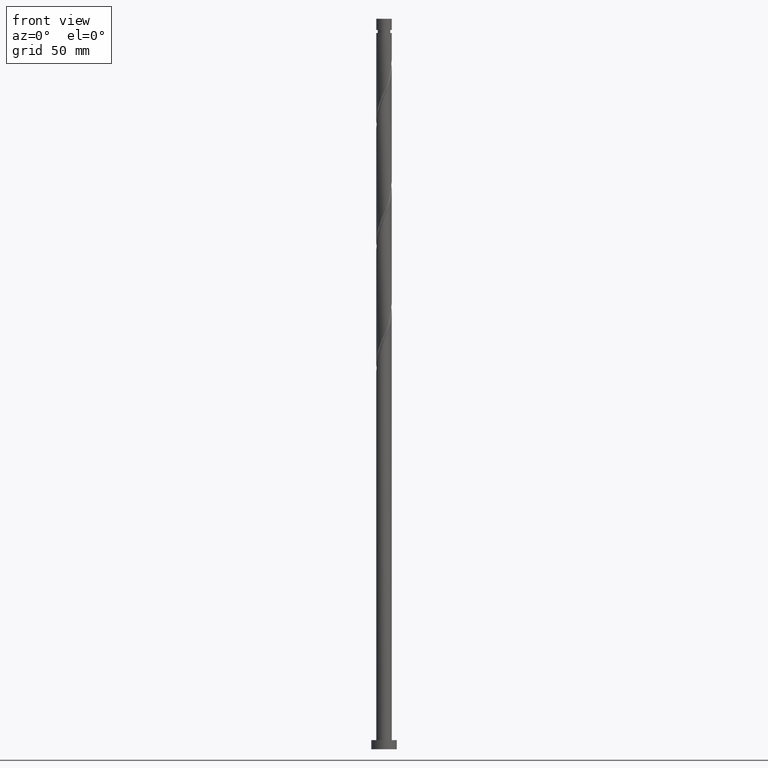
[diagram: clean part render]
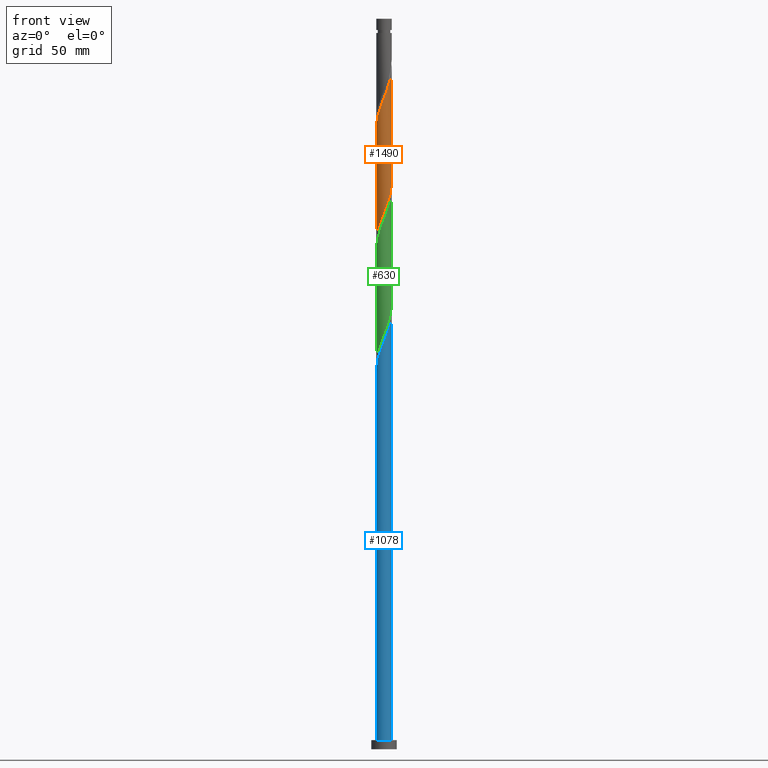
[diagram: same view with three faces highlighted in distinct colors, each labeled with its STEP entity id]
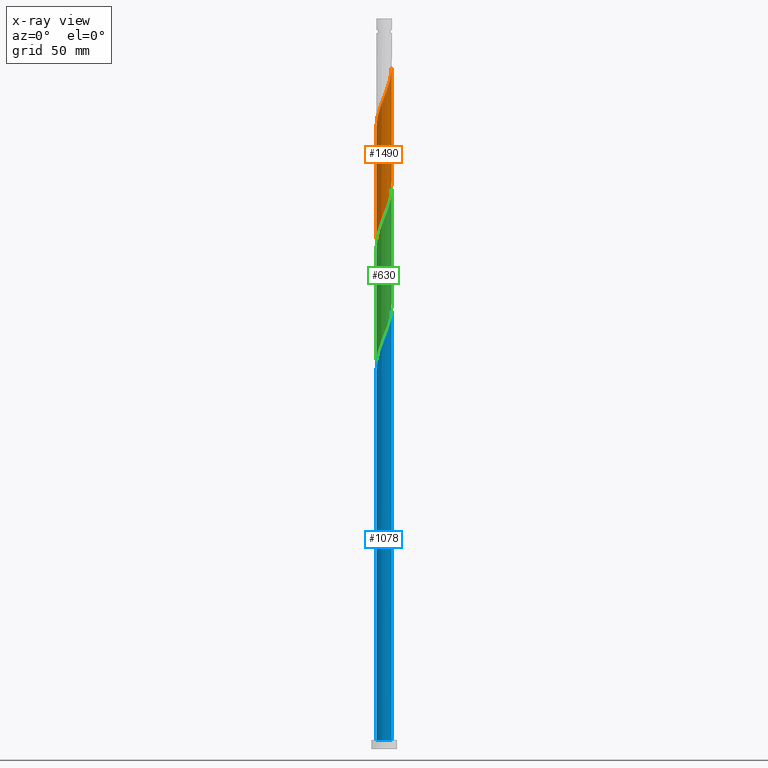
[diagram: x-ray of the same camera — body ghosted, the three highlighted faces saturated]
A machine part, front view with three faces highlighted in distinct colors.
The next image is the same camera in x-ray (body ghosted, the three faces saturated) — at least one of them is partly hidden behind the body in this view.
Their STEP definitions:

[orange] entity #1490 — the highlighted cylindrical surface (edge-blend (fillet) strip) has radius 4.25 mm, axis along (-0, -0, -1).
#7 = CARTESIAN_POINT ( 'NONE',  ( 2.830437168395603109, -3.201665202969502744, 364.3783053270077517 ) ) ;
#33 = CARTESIAN_POINT ( 'NONE',  ( -4.171763359826002215, -0.9265123343778360887, 279.9338608825633514 ) ) ;
#37 = CARTESIAN_POINT ( 'NONE',  ( 4.230587525814526018, -0.4057452235362905002, 309.9338608825632946 ) ) ;
#42 = CARTESIAN_POINT ( 'NONE',  ( 4.250000000000004441, -0.2421383841473553622, 372.7583818852127706 ) ) ;
#53 = CARTESIAN_POINT ( 'NONE',  ( 4.222498213536512779, -0.4827098887333990396, 372.1560831047854094 ) ) ;
#94 = CARTESIAN_POINT ( 'NONE',  ( 0.000000000000000000, 0.000000000000000000, 400.0000000000000000 ) ) ;
#97 = EDGE_CURVE ( 'NONE', #1763, #618, #1426, .T. ) ;
#108 = CARTESIAN_POINT ( 'NONE',  ( 1.693210080467172141, -3.898145664723728920, 361.0449719936743804 ) ) ;
#116 = CARTESIAN_POINT ( 'NONE',  ( -3.919617740824337115, -1.702536754950149556, 344.3783053270079222 ) ) ;
#170 = ORIENTED_EDGE ( 'NONE', *, *, #97, .F. ) ;
#180 = CARTESIAN_POINT ( 'NONE',  ( 3.132343059735661406, -2.872442681086236238, 365.4894164381188943 ) ) ;
#207 = CARTESIAN_POINT ( 'NONE',  ( 3.184126145991869716, -2.814931737433602699, 303.2671942158967227 ) ) ;
#226 = CARTESIAN_POINT ( 'NONE',  ( 1.357504815986443347, -4.052063093131031302, 297.7116386603411797 ) ) ;
#255 =( BOUNDED_CURVE ( )  B_SPLINE_CURVE ( 2, ( #1797, #1201, #730, #404, #1497, #116, #741, #1339, #1544, #778, #1705, #606, #800, #1880, #330, #1225, #1129, #688, #1820, #1482, #108, #578, #1045, #7, #180, #655, #799, #669, #1275, #560, #53, #42, #1178 ),
 .UNSPECIFIED., .F., .T. ) 
 B_SPLINE_CURVE_WITH_KNOTS ( ( 3, 2, 2, 2, 2, 2, 2, 2, 2, 2, 2, 2, 2, 2, 2, 2, 3 ),
 ( 0.5545286012773111839, 0.5583333333333333481, 0.5666666666666666519, 0.5749999999999999556, 0.5833333333333332593, 0.5916666666666666741, 0.5999999999999999778, 0.6083333333333333925, 0.6166666666666666963, 0.6250000000000000000, 0.6333333333333333037, 0.6416666666666666075, 0.6500000000000000222, 0.6583333333333333259, 0.6666666666666667407, 0.6750000000000000444, 0.6795286012773111839 ),
 .UNSPECIFIED. ) 
 CURVE ( )  GEOMETRIC_REPRESENTATION_ITEM ( )  RATIONAL_B_SPLINE_CURVE ( ( 0.9066196499552376942, 0.9068171577856501964, 0.9090909090909493617, 0.9041108139711975245, 0.9090909090909493617, 0.9041108139711975245, 0.9090909090909493617, 0.9041108139711975245, 0.9090909090909493617, 0.9041108139711975245, 0.9090909090909493617, 0.9041108139711975245, 0.9090909090909493617, 0.9041108139711975245, 0.9090909090909493617, 0.9041108139711975245, 0.9090909090909493617, 0.9041108139711975245, 0.9090909090909493617, 0.9041108139711975245, 0.9090909090909493617, 0.9041108139711975245, 0.9090909090909493617, 0.9041108139711975245, 0.9090909090909493617, 0.9041108139711975245, 0.9090909090909493617, 0.9041108139711975245, 0.9090909090909493617, 0.9041108139711975245, 0.9090909090909493617, 0.9063845652764966898, 0.9066196499552376942 ) ) 
 REPRESENTATION_ITEM ( '' )  );
#291 = DIRECTION ( 'NONE',  ( -0.000000000000000000, -0.000000000000000000, -1.000000000000000000 ) ) ;
#320 = CARTESIAN_POINT ( 'NONE',  ( -2.830437168395600889, -3.201665202969495194, 286.6005275492299234 ) ) ;
#330 = CARTESIAN_POINT ( 'NONE',  ( -0.9214368028675327116, -4.148910003642077626, 354.3783053270077517 ) ) ;
#366 = CARTESIAN_POINT ( 'NONE',  ( -4.249999999999999112, 6.263386061258690011E-15, 277.6148596816402687 ) ) ;
#378 = AXIS2_PLACEMENT_3D ( 'NONE', #94, #1537, #611 ) ;
#404 = CARTESIAN_POINT ( 'NONE',  ( -4.187941984382050897, -0.8503978901615349972, 342.1560831047856368 ) ) ;
#424 = EDGE_LOOP ( 'NONE', ( #470, #425, #1263, #170 ) ) ;
#425 = ORIENTED_EDGE ( 'NONE', *, *, #524, .F. ) ;
#429 = CARTESIAN_POINT ( 'NONE',  ( -1.693210080467172807, -3.898145664723722703, 289.9338608825634651 ) ) ;
#470 = ORIENTED_EDGE ( 'NONE', *, *, #1801, .F. ) ;
#524 = EDGE_CURVE ( 'NONE', #660, #525, #255, .T. ) ;
#525 = VERTEX_POINT ( 'NONE', #1617 ) ;
#560 = CARTESIAN_POINT ( 'NONE',  ( 4.171763359826008433, -0.9265123343778421949, 371.0449719936744941 ) ) ;
#578 = CARTESIAN_POINT ( 'NONE',  ( 2.102921699512172449, -3.720182114072092094, 362.1560831047855231 ) ) ;
#583 = LINE ( 'NONE', #1629, #996 ) ;
#606 = CARTESIAN_POINT ( 'NONE',  ( -2.170311367734845120, -3.681274670983133213, 351.0449719936744941 ) ) ;
#611 = DIRECTION ( 'NONE',  ( -1.000000000000000000, 0.000000000000000000, 0.000000000000000000 ) ) ;
#618 = VERTEX_POINT ( 'NONE', #1704 ) ;
#655 = CARTESIAN_POINT ( 'NONE',  ( 3.434248951075719702, -2.543220159202970621, 366.6005275492300370 ) ) ;
#659 = CARTESIAN_POINT ( 'NONE',  ( -3.132343059735657853, -2.872442681086230465, 285.4894164381188943 ) ) ;
#660 = VERTEX_POINT ( 'NONE', #1308 ) ;
#664 = CARTESIAN_POINT ( 'NONE',  ( 3.479987393579909050, -2.480266593869682623, 304.3783053270077517 ) ) ;
#669 = CARTESIAN_POINT ( 'NONE',  ( 3.887967575239005491, -1.773624190754963470, 368.8227497714522656 ) ) ;
#688 = CARTESIAN_POINT ( 'NONE',  ( 0.4079801816590866159, -4.253890784624646315, 357.7116386603411797 ) ) ;
#707 = CARTESIAN_POINT ( 'NONE',  ( 4.250000000000000000, -0.2033369969686737444, 310.4396444894096589 ) ) ;
#730 = CARTESIAN_POINT ( 'NONE',  ( -4.230587525814534011, -0.4057452235362874471, 341.0449719936744941 ) ) ;
#741 = CARTESIAN_POINT ( 'NONE',  ( -3.699802567202127079, -2.091401674409916200, 345.4894164381189512 ) ) ;
#778 = CARTESIAN_POINT ( 'NONE',  ( -2.888264898403836156, -3.149596880997526327, 348.8227497714522656 ) ) ;
#783 = CARTESIAN_POINT ( 'NONE',  ( 4.250000000000000000, 5.204748896376249713E-16, 400.0000000000000000 ) ) ;
#791 = CARTESIAN_POINT ( 'NONE',  ( -4.029865467532502521, -1.350068262566397115, 281.0449719936743804 ) ) ;
#799 = CARTESIAN_POINT ( 'NONE',  ( 3.661108263157362153, -2.158422174978967600, 367.7116386603411229 ) ) ;
#800 = CARTESIAN_POINT ( 'NONE',  ( -1.763908091860645788, -3.866668882057084922, 352.1560831047855800 ) ) ;
#826 = CARTESIAN_POINT ( 'NONE',  ( 2.888264898403830827, -3.149596880997521886, 302.1560831047855231 ) ) ;
#909 = LINE ( 'NONE', #783, #1805 ) ;
#996 = VECTOR ( 'NONE', #1968, 1000.000000000000000 ) ;
#1011 = CARTESIAN_POINT ( 'NONE',  ( 3.919617740824329122, -1.702536754950150000, 306.6005275492299234 ) ) ;
#1045 = CARTESIAN_POINT ( 'NONE',  ( 2.466679433953887113, -3.460923658520797641, 363.2671942158966090 ) ) ;
#1047 = CARTESIAN_POINT ( 'NONE',  ( -2.102921699512170672, -3.720182114072085433, 288.8227497714522656 ) ) ;
#1077 = CARTESIAN_POINT ( 'NONE',  ( 2.170311367734838015, -3.681274670983127884, 299.9338608825632946 ) ) ;
#1129 = CARTESIAN_POINT ( 'NONE',  ( -0.03869430404476591895, -4.249823849388882913, 356.6005275492299802 ) ) ;
#1178 = CARTESIAN_POINT ( 'NONE',  ( 4.250000000000006217, -2.840198929926355475E-16, 373.3639731945973494 ) ) ;
#1201 = CARTESIAN_POINT ( 'NONE',  ( -4.250000000000007994, -0.2033369969686700252, 340.5391883868281298 ) ) ;
#1215 = EDGE_CURVE ( 'NONE', #660, #618, #583, .T. ) ;
#1224 = CARTESIAN_POINT ( 'NONE',  ( -0.8457393215406306952, -4.165000000000000036, 292.1560831047856936 ) ) ;
#1225 = CARTESIAN_POINT ( 'NONE',  ( -0.4853687897486166913, -4.245756914153122175, 355.4894164381189512 ) ) ;
#1263 = ORIENTED_EDGE ( 'NONE', *, *, #1215, .T. ) ;
#1275 = CARTESIAN_POINT ( 'NONE',  ( 4.029865467532506074, -1.350068262566402666, 369.9338608825633514 ) ) ;
#1308 = CARTESIAN_POINT ( 'NONE',  ( -4.250000000000006217, -1.136079571970542190E-15, 340.0306398612640919 ) ) ;
#1339 = CARTESIAN_POINT ( 'NONE',  ( -3.479987393579918376, -2.480266593869682179, 346.6005275492299234 ) ) ;
#1344 = CARTESIAN_POINT ( 'NONE',  ( 4.249999999999998224, 3.886588009372933949E-15, 310.9481930149737536 ) ) ;
#1350 = CARTESIAN_POINT ( 'NONE',  ( -0.4079801816590895580, -4.253890784624638322, 293.2671942158965521 ) ) ;
#1417 = CARTESIAN_POINT ( 'NONE',  ( -3.434248951075715706, -2.543220159202964403, 284.3783053270076948 ) ) ;
#1422 = CARTESIAN_POINT ( 'NONE',  ( 3.699802567202120862, -2.091401674409914868, 305.4894164381188943 ) ) ;
#1426 =( BOUNDED_CURVE ( )  B_SPLINE_CURVE ( 2, ( #1934, #707, #37, #1616, #1784, #1011, #1422, #664, #207, #826, #1761, #1077, #1464, #226, #1977, #1666, #1843, #1350, #1224, #1534, #429, #1047, #1669, #320, #659, #1417, #1547, #1558, #791, #33, #1913, #1901, #366 ),
 .UNSPECIFIED., .F., .T. ) 
 B_SPLINE_CURVE_WITH_KNOTS ( ( 3, 2, 2, 2, 2, 2, 2, 2, 2, 2, 2, 2, 2, 2, 2, 2, 3 ),
 ( 0.5545286012773111839, 0.5583333333333333481, 0.5666666666666666519, 0.5749999999999999556, 0.5833333333333333703, 0.5916666666666666741, 0.5999999999999999778, 0.6083333333333332815, 0.6166666666666666963, 0.6250000000000000000, 0.6333333333333333037, 0.6416666666666667185, 0.6500000000000000222, 0.6583333333333333259, 0.6666666666666666297, 0.6750000000000000444, 0.6795286012773118500 ),
 .UNSPECIFIED. ) 
 CURVE ( )  GEOMETRIC_REPRESENTATION_ITEM ( )  RATIONAL_B_SPLINE_CURVE ( ( 0.9066196499552314769, 0.9068171577856440901, 0.9090909090909431445, 0.9041108139711915292, 0.9090909090909431445, 0.9041108139711915292, 0.9090909090909431445, 0.9041108139711915292, 0.9090909090909431445, 0.9041108139711915292, 0.9090909090909431445, 0.9041108139711915292, 0.9090909090909431445, 0.9041108139711915292, 0.9090909090909431445, 0.9041108139711915292, 0.9090909090909431445, 0.9041108139711915292, 0.9090909090909431445, 0.9041108139711915292, 0.9090909090909431445, 0.9041108139711915292, 0.9090909090909431445, 0.9041108139711915292, 0.9090909090909431445, 0.9041108139711915292, 0.9090909090909431445, 0.9041108139711915292, 0.9090909090909431445, 0.9041108139711915292, 0.9090909090909431445, 0.9063845652764901395, 0.9066196499552315879 ) ) 
 REPRESENTATION_ITEM ( '' )  );
#1464 = CARTESIAN_POINT ( 'NONE',  ( 1.763908091860642013, -3.866668882057079148, 298.8227497714522087 ) ) ;
#1476 = FACE_OUTER_BOUND ( 'NONE', #424, .T. ) ;
#1482 = CARTESIAN_POINT ( 'NONE',  ( 1.283498461422172277, -4.076109215375366190, 359.9338608825634083 ) ) ;
#1490 = ADVANCED_FACE ( 'NONE', ( #1476 ), #1627, .T. ) ;
#1497 = CARTESIAN_POINT ( 'NONE',  ( -4.053779862603193784, -1.276467322555842276, 343.2671942158966658 ) ) ;
#1534 = CARTESIAN_POINT ( 'NONE',  ( -1.283498461422173387, -4.076109215375357309, 291.0449719936743804 ) ) ;
#1537 = DIRECTION ( 'NONE',  ( -0.000000000000000000, -0.000000000000000000, -1.000000000000000000 ) ) ;
#1544 = CARTESIAN_POINT ( 'NONE',  ( -3.184126145991876822, -2.814931737433603143, 347.7116386603410660 ) ) ;
#1547 = CARTESIAN_POINT ( 'NONE',  ( -3.661108263157358156, -2.158422174978960939, 283.2671942158966090 ) ) ;
#1558 = CARTESIAN_POINT ( 'NONE',  ( -3.887967575238999718, -1.773624190754958807, 282.1560831047856368 ) ) ;
#1616 = CARTESIAN_POINT ( 'NONE',  ( 4.187941984382045568, -0.8503978901615352193, 308.8227497714523224 ) ) ;
#1617 = CARTESIAN_POINT ( 'NONE',  ( 4.250000000000006217, -2.840198929926355475E-16, 373.3639731945973494 ) ) ;
#1627 = CYLINDRICAL_SURFACE ( 'NONE', #378, 4.250000000000000000 ) ;
#1629 = CARTESIAN_POINT ( 'NONE',  ( -4.250000000000000000, 0.000000000000000000, 400.0000000000000000 ) ) ;
#1666 = CARTESIAN_POINT ( 'NONE',  ( 0.4853687897486140268, -4.245756914153113293, 295.4894164381188943 ) ) ;
#1669 = CARTESIAN_POINT ( 'NONE',  ( -2.466679433953886669, -3.460923658520790536, 287.7116386603411797 ) ) ;
#1704 = CARTESIAN_POINT ( 'NONE',  ( -4.249999999999999112, 6.263386061258690011E-15, 277.6148596816402687 ) ) ;
#1705 = CARTESIAN_POINT ( 'NONE',  ( -2.529288133069340638, -3.415435775990328882, 349.9338608825632377 ) ) ;
#1761 = CARTESIAN_POINT ( 'NONE',  ( 2.529288133069334421, -3.415435775990326217, 301.0449719936744373 ) ) ;
#1763 = VERTEX_POINT ( 'NONE', #1344 ) ;
#1784 = CARTESIAN_POINT ( 'NONE',  ( 4.053779862603186679, -1.276467322555844719, 307.7116386603411229 ) ) ;
#1797 = CARTESIAN_POINT ( 'NONE',  ( -4.250000000000006217, -1.136079571970542190E-15, 340.0306398612640919 ) ) ;
#1801 = EDGE_CURVE ( 'NONE', #525, #1763, #909, .T. ) ;
#1805 = VECTOR ( 'NONE', #291, 1000.000000000000000 ) ;
#1820 = CARTESIAN_POINT ( 'NONE',  ( 0.8457393215406302511, -4.165000000000005365, 358.8227497714522087 ) ) ;
#1843 = CARTESIAN_POINT ( 'NONE',  ( 0.03869430404476233848, -4.249823849388876695, 294.3783053270078085 ) ) ;
#1880 = CARTESIAN_POINT ( 'NONE',  ( -1.357504815986449120, -4.052063093131035743, 353.2671942158967227 ) ) ;
#1901 = CARTESIAN_POINT ( 'NONE',  ( -4.250000000000002665, -0.2421383841473169485, 278.2204509910249044 ) ) ;
#1913 = CARTESIAN_POINT ( 'NONE',  ( -4.222498213536505673, -0.4827098887333968191, 278.8227497714521519 ) ) ;
#1934 = CARTESIAN_POINT ( 'NONE',  ( 4.249999999999998224, 3.886588009372933949E-15, 310.9481930149738105 ) ) ;
#1968 = DIRECTION ( 'NONE',  ( -0.000000000000000000, -0.000000000000000000, -1.000000000000000000 ) ) ;
#1977 = CARTESIAN_POINT ( 'NONE',  ( 0.9214368028675279376, -4.148910003642072297, 296.6005275492299234 ) ) ;

[blue] entity #1078 — the highlighted cylindrical surface (edge-blend (fillet) strip) has radius 4.25 mm, axis along (-0, -0, -1).
#61 = EDGE_LOOP ( 'NONE', ( #1766, #1883, #1723, #748 ) ) ;
#135 = CARTESIAN_POINT ( 'NONE',  ( -2.170311367734845120, -3.681274670983133213, 217.7116386603410945 ) ) ;
#267 = VERTEX_POINT ( 'NONE', #1779 ) ;
#295 = CARTESIAN_POINT ( 'NONE',  ( 0.4079801816590866159, -4.253890784624646315, 224.3783053270078085 ) ) ;
#301 = CARTESIAN_POINT ( 'NONE',  ( 4.250000000000007105, 2.899992591609016259E-15, 240.0306398612640919 ) ) ;
#326 = CARTESIAN_POINT ( 'NONE',  ( -3.919617740824337115, -1.702536754950149556, 211.0449719936744657 ) ) ;
#343 = VERTEX_POINT ( 'NONE', #1859 ) ;
#348 = CARTESIAN_POINT ( 'NONE',  ( 4.250000000000007105, 2.899992591609015865E-15, 240.0306398612640635 ) ) ;
#363 = DIRECTION ( 'NONE',  ( 1.000000000000000000, 0.000000000000000000, 0.000000000000000000 ) ) ;
#367 = DIRECTION ( 'NONE',  ( -0.000000000000000000, -0.000000000000000000, -1.000000000000000000 ) ) ;
#382 = CARTESIAN_POINT ( 'NONE',  ( 4.250000000000007105, -0.2421383841473347120, 239.4250485518795415 ) ) ;
#441 = CARTESIAN_POINT ( 'NONE',  ( -4.187941984382050897, -0.8503978901615349972, 208.8227497714522656 ) ) ;
#460 = VERTEX_POINT ( 'NONE', #1747 ) ;
#536 = CARTESIAN_POINT ( 'NONE',  ( 4.222498213536512779, -0.4827098887333990396, 238.8227497714522372 ) ) ;
#571 = EDGE_CURVE ( 'NONE', #267, #460, #1597, .T. ) ;
#593 =( BOUNDED_CURVE ( )  B_SPLINE_CURVE ( 2, ( #1713, #1200, #1827, #441, #1515, #326, #1382, #1994, #1851, #949, #1690, #135, #613, #756, #602, #1682, #1840, #295, #921, #1522, #1221, #685, #980, #1283, #652, #818, #1772, #1907, #1107, #1271, #536, #382, #348 ),
 .UNSPECIFIED., .F., .T. ) 
 B_SPLINE_CURVE_WITH_KNOTS ( ( 3, 2, 2, 2, 2, 2, 2, 2, 2, 2, 2, 2, 2, 2, 2, 2, 3 ),
 ( 0.05452860127731148920, 0.05833333333333334814, 0.06666666666666665186, 0.07499999999999995559, 0.08333333333333337034, 0.09166666666666667407, 0.09999999999999997780, 0.1083333333333332815, 0.1166666666666666963, 0.1250000000000000000, 0.1333333333333333037, 0.1416666666666667185, 0.1500000000000000222, 0.1583333333333333259, 0.1666666666666666297, 0.1750000000000000444, 0.1795286012773115725 ),
 .UNSPECIFIED. ) 
 CURVE ( )  GEOMETRIC_REPRESENTATION_ITEM ( )  RATIONAL_B_SPLINE_CURVE ( ( 0.9066196499552376942, 0.9068171577856504184, 0.9090909090909493617, 0.9041108139711975245, 0.9090909090909493617, 0.9041108139711975245, 0.9090909090909493617, 0.9041108139711975245, 0.9090909090909493617, 0.9041108139711975245, 0.9090909090909493617, 0.9041108139711975245, 0.9090909090909493617, 0.9041108139711975245, 0.9090909090909493617, 0.9041108139711975245, 0.9090909090909493617, 0.9041108139711975245, 0.9090909090909493617, 0.9041108139711975245, 0.9090909090909493617, 0.9041108139711975245, 0.9090909090909493617, 0.9041108139711975245, 0.9090909090909493617, 0.9041108139711975245, 0.9090909090909493617, 0.9041108139711975245, 0.9090909090909493617, 0.9041108139711975245, 0.9090909090909493617, 0.9063845652764963567, 0.9066196499552376942 ) ) 
 REPRESENTATION_ITEM ( '' )  );
#602 = CARTESIAN_POINT ( 'NONE',  ( -0.9214368028675327116, -4.148910003642077626, 221.0449719936744941 ) ) ;
#613 = CARTESIAN_POINT ( 'NONE',  ( -1.763908091860645788, -3.866668882057084922, 218.8227497714522372 ) ) ;
#652 = CARTESIAN_POINT ( 'NONE',  ( 3.132343059735661406, -2.872442681086236238, 232.1560831047855515 ) ) ;
#685 = CARTESIAN_POINT ( 'NONE',  ( 2.102921699512172449, -3.720182114072092094, 228.8227497714522087 ) ) ;
#710 = LINE ( 'NONE', #893, #1872 ) ;
#718 = DIRECTION ( 'NONE',  ( -0.000000000000000000, -0.000000000000000000, -1.000000000000000000 ) ) ;
#724 = EDGE_CURVE ( 'NONE', #1580, #460, #1151, .T. ) ;
#748 = ORIENTED_EDGE ( 'NONE', *, *, #571, .T. ) ;
#756 = CARTESIAN_POINT ( 'NONE',  ( -1.357504815986449120, -4.052063093131035743, 219.9338608825633798 ) ) ;
#818 = CARTESIAN_POINT ( 'NONE',  ( 3.434248951075719702, -2.543220159202970621, 233.2671942158966658 ) ) ;
#862 = DIRECTION ( 'NONE',  ( -1.000000000000000000, 0.000000000000000000, 0.000000000000000000 ) ) ;
#893 = CARTESIAN_POINT ( 'NONE',  ( -4.250000000000000000, 0.000000000000000000, 400.0000000000000000 ) ) ;
#899 = VECTOR ( 'NONE', #367, 1000.000000000000000 ) ;
#921 = CARTESIAN_POINT ( 'NONE',  ( 0.8457393215406302511, -4.165000000000005365, 225.4894164381188659 ) ) ;
#948 = DIRECTION ( 'NONE',  ( 0.000000000000000000, 0.000000000000000000, 1.000000000000000000 ) ) ;
#949 = CARTESIAN_POINT ( 'NONE',  ( -2.888264898403836156, -3.149596880997526327, 215.4894164381189228 ) ) ;
#980 = CARTESIAN_POINT ( 'NONE',  ( 2.466679433953887113, -3.460923658520797641, 229.9338608825633514 ) ) ;
#1078 = ADVANCED_FACE ( 'NONE', ( #1496 ), #1621, .T. ) ;
#1107 = CARTESIAN_POINT ( 'NONE',  ( 4.029865467532506074, -1.350068262566402666, 236.6005275492300370 ) ) ;
#1151 = LINE ( 'NONE', #1734, #899 ) ;
#1183 = CARTESIAN_POINT ( 'NONE',  ( 0.000000000000000000, 0.000000000000000000, 400.0000000000000000 ) ) ;
#1200 = CARTESIAN_POINT ( 'NONE',  ( -4.250000000000007105, -0.2033369969686862899, 207.2058550534947869 ) ) ;
#1213 = EDGE_CURVE ( 'NONE', #343, #267, #710, .T. ) ;
#1221 = CARTESIAN_POINT ( 'NONE',  ( 1.693210080467172141, -3.898145664723728920, 227.7116386603410945 ) ) ;
#1271 = CARTESIAN_POINT ( 'NONE',  ( 4.171763359826008433, -0.9265123343778421949, 237.7116386603411229 ) ) ;
#1283 = CARTESIAN_POINT ( 'NONE',  ( 2.830437168395603109, -3.201665202969502744, 231.0449719936744373 ) ) ;
#1291 = EDGE_CURVE ( 'NONE', #343, #1580, #593, .T. ) ;
#1307 = AXIS2_PLACEMENT_3D ( 'NONE', #1712, #948, #363 ) ;
#1382 = CARTESIAN_POINT ( 'NONE',  ( -3.699802567202127079, -2.091401674409916200, 212.1560831047855515 ) ) ;
#1496 = FACE_OUTER_BOUND ( 'NONE', #61, .T. ) ;
#1515 = CARTESIAN_POINT ( 'NONE',  ( -4.053779862603193784, -1.276467322555842276, 209.9338608825633514 ) ) ;
#1522 = CARTESIAN_POINT ( 'NONE',  ( 1.283498461422172277, -4.076109215375366190, 226.6005275492300086 ) ) ;
#1580 = VERTEX_POINT ( 'NONE', #301 ) ;
#1597 = CIRCLE ( 'NONE', #1307, 4.250000000000000000 ) ;
#1621 = CYLINDRICAL_SURFACE ( 'NONE', #1667, 4.250000000000000000 ) ;
#1663 = DIRECTION ( 'NONE',  ( -0.000000000000000000, -0.000000000000000000, -1.000000000000000000 ) ) ;
#1667 = AXIS2_PLACEMENT_3D ( 'NONE', #1183, #718, #862 ) ;
#1682 = CARTESIAN_POINT ( 'NONE',  ( -0.4853687897486166913, -4.245756914153122175, 222.1560831047855515 ) ) ;
#1690 = CARTESIAN_POINT ( 'NONE',  ( -2.529288133069340638, -3.415435775990328882, 216.6005275492300086 ) ) ;
#1712 = CARTESIAN_POINT ( 'NONE',  ( 0.000000000000000000, 0.000000000000000000, 5.000000000000000000 ) ) ;
#1713 = CARTESIAN_POINT ( 'NONE',  ( -4.250000000000007105, -4.320092056572194243E-15, 206.6973065279307491 ) ) ;
#1723 = ORIENTED_EDGE ( 'NONE', *, *, #1213, .T. ) ;
#1734 = CARTESIAN_POINT ( 'NONE',  ( 4.250000000000000000, 5.204748896376249713E-16, 400.0000000000000000 ) ) ;
#1747 = CARTESIAN_POINT ( 'NONE',  ( 4.250000000000000000, 5.204748896376249713E-16, 5.000000000000000000 ) ) ;
#1766 = ORIENTED_EDGE ( 'NONE', *, *, #724, .F. ) ;
#1772 = CARTESIAN_POINT ( 'NONE',  ( 3.661108263157362153, -2.158422174978967600, 234.3783053270077517 ) ) ;
#1779 = CARTESIAN_POINT ( 'NONE',  ( -4.250000000000000000, 0.000000000000000000, 5.000000000000000000 ) ) ;
#1827 = CARTESIAN_POINT ( 'NONE',  ( -4.230587525814534011, -0.4057452235362874471, 207.7116386603411229 ) ) ;
#1840 = CARTESIAN_POINT ( 'NONE',  ( -0.03869430404476591895, -4.249823849388882913, 223.2671942158966374 ) ) ;
#1851 = CARTESIAN_POINT ( 'NONE',  ( -3.184126145991876822, -2.814931737433603143, 214.3783053270077517 ) ) ;
#1859 = CARTESIAN_POINT ( 'NONE',  ( -4.250000000000007105, -4.320092056572194243E-15, 206.6973065279307491 ) ) ;
#1872 = VECTOR ( 'NONE', #1663, 1000.000000000000000 ) ;
#1883 = ORIENTED_EDGE ( 'NONE', *, *, #1291, .F. ) ;
#1907 = CARTESIAN_POINT ( 'NONE',  ( 3.887967575239005491, -1.773624190754963470, 235.4894164381189512 ) ) ;
#1994 = CARTESIAN_POINT ( 'NONE',  ( -3.479987393579918376, -2.480266593869682179, 213.2671942158966658 ) ) ;

[green] entity #630 — the highlighted cylindrical surface (edge-blend (fillet) strip) has radius 4.25 mm, axis along (-0, -0, -1).
#11 = CARTESIAN_POINT ( 'NONE',  ( -4.230587525814534011, -0.4057452235362874471, 274.3783053270078085 ) ) ;
#14 = DIRECTION ( 'NONE',  ( -1.000000000000000000, 0.000000000000000000, 0.000000000000000000 ) ) ;
#16 = CARTESIAN_POINT ( 'NONE',  ( 3.887967575239005491, -1.773624190754963470, 302.1560831047856368 ) ) ;
#71 = CARTESIAN_POINT ( 'NONE',  ( -2.466679433953886669, -3.460923658520790536, 221.0449719936744657 ) ) ;
#111 = CARTESIAN_POINT ( 'NONE',  ( 4.249999999999998224, -0.2033369969686974477, 243.7729778227429733 ) ) ;
#125 = ORIENTED_EDGE ( 'NONE', *, *, #421, .F. ) ;
#133 = CARTESIAN_POINT ( 'NONE',  ( 0.4079801816590866159, -4.253890784624646315, 291.0449719936744941 ) ) ;
#152 = CARTESIAN_POINT ( 'NONE',  ( -4.250000000000007105, -4.320092056572194243E-15, 273.3639731945974063 ) ) ;
#171 = CARTESIAN_POINT ( 'NONE',  ( -4.250000000000003553, -0.2033369969687055245, 273.8725217201614441 ) ) ;
#174 = CARTESIAN_POINT ( 'NONE',  ( 3.434248951075719702, -2.543220159202970621, 299.9338608825633514 ) ) ;
#191 = CARTESIAN_POINT ( 'NONE',  ( 4.249999999999998224, 3.886588009372933949E-15, 244.2815263483070396 ) ) ;
#196 = CARTESIAN_POINT ( 'NONE',  ( 4.171763359826008433, -0.9265123343778421949, 304.3783053270077517 ) ) ;
#205 = LINE ( 'NONE', #1593, #1937 ) ;
#228 = CARTESIAN_POINT ( 'NONE',  ( 4.187941984382045568, -0.8503978901615352193, 242.1560831047855515 ) ) ;
#254 = CARTESIAN_POINT ( 'NONE',  ( -2.102921699512170672, -3.720182114072085433, 222.1560831047854947 ) ) ;
#263 = CARTESIAN_POINT ( 'NONE',  ( 1.357504815986443347, -4.052063093131031302, 231.0449719936744088 ) ) ;
#282 = CARTESIAN_POINT ( 'NONE',  ( -2.888264898403836156, -3.149596880997526327, 282.1560831047856936 ) ) ;
#324 = DIRECTION ( 'NONE',  ( -0.000000000000000000, -0.000000000000000000, -1.000000000000000000 ) ) ;
#355 = DIRECTION ( 'NONE',  ( -0.000000000000000000, -0.000000000000000000, -1.000000000000000000 ) ) ;
#391 = CARTESIAN_POINT ( 'NONE',  ( -3.132343059735657853, -2.872442681086230465, 218.8227497714522087 ) ) ;
#401 = CARTESIAN_POINT ( 'NONE',  ( 4.053779862603186679, -1.276467322555844719, 241.0449719936744373 ) ) ;
#410 = CARTESIAN_POINT ( 'NONE',  ( 2.170311367734838015, -3.681274670983127884, 233.2671942158966374 ) ) ;
#419 = CARTESIAN_POINT ( 'NONE',  ( 4.230587525814526018, -0.4057452235362905002, 243.2671942158967227 ) ) ;
#420 = CARTESIAN_POINT ( 'NONE',  ( -1.763908091860645788, -3.866668882057084922, 285.4894164381188943 ) ) ;
#421 = EDGE_CURVE ( 'NONE', #1700, #1708, #1852, .T. ) ;
#448 = EDGE_CURVE ( 'NONE', #1708, #580, #494, .T. ) ;
#451 = CARTESIAN_POINT ( 'NONE',  ( -0.9214368028675327116, -4.148910003642077626, 287.7116386603411229 ) ) ;
#459 = CARTESIAN_POINT ( 'NONE',  ( -4.250000000000007105, -4.320092056572194243E-15, 273.3639731945974063 ) ) ;
#461 = CARTESIAN_POINT ( 'NONE',  ( -4.249999999999999112, 1.813242790526680367E-14, 210.9481930149736968 ) ) ;
#494 = LINE ( 'NONE', #1260, #765 ) ;
#553 = CARTESIAN_POINT ( 'NONE',  ( -4.171763359826002215, -0.9265123343778360887, 213.2671942158966374 ) ) ;
#580 = VERTEX_POINT ( 'NONE', #191 ) ;
#581 = CARTESIAN_POINT ( 'NONE',  ( 0.4853687897486140268, -4.245756914153113293, 228.8227497714522372 ) ) ;
#596 = CARTESIAN_POINT ( 'NONE',  ( -4.053779862603193784, -1.276467322555842276, 276.6005275492299802 ) ) ;
#599 = CARTESIAN_POINT ( 'NONE',  ( 0.8457393215406302511, -4.165000000000005365, 292.1560831047855231 ) ) ;
#600 = AXIS2_PLACEMENT_3D ( 'NONE', #830, #324, #14 ) ;
#630 = ADVANCED_FACE ( 'NONE', ( #812 ), #1589, .T. ) ;
#697 = EDGE_LOOP ( 'NONE', ( #1986, #125, #883, #1630 ) ) ;
#708 = CARTESIAN_POINT ( 'NONE',  ( -3.887967575238999718, -1.773624190754958807, 215.4894164381188659 ) ) ;
#727 = CARTESIAN_POINT ( 'NONE',  ( -2.170311367734845120, -3.681274670983133213, 284.3783053270076948 ) ) ;
#754 = CARTESIAN_POINT ( 'NONE',  ( 1.693210080467172141, -3.898145664723728920, 294.3783053270076948 ) ) ;
#765 = VECTOR ( 'NONE', #1124, 1000.000000000000000 ) ;
#812 = FACE_OUTER_BOUND ( 'NONE', #697, .T. ) ;
#830 = CARTESIAN_POINT ( 'NONE',  ( 0.000000000000000000, 0.000000000000000000, 400.0000000000000000 ) ) ;
#871 = CARTESIAN_POINT ( 'NONE',  ( 0.9214368028675279376, -4.148910003642072297, 229.9338608825633514 ) ) ;
#883 = ORIENTED_EDGE ( 'NONE', *, *, #1858, .T. ) ;
#889 = CARTESIAN_POINT ( 'NONE',  ( 3.479987393579909050, -2.480266593869682623, 237.7116386603410660 ) ) ;
#890 = CARTESIAN_POINT ( 'NONE',  ( 3.132343059735661406, -2.872442681086236238, 298.8227497714522087 ) ) ;
#900 = CARTESIAN_POINT ( 'NONE',  ( -3.184126145991876822, -2.814931737433603143, 281.0449719936743804 ) ) ;
#910 = CARTESIAN_POINT ( 'NONE',  ( -1.357504815986449120, -4.052063093131035743, 286.6005275492299802 ) ) ;
#956 = CARTESIAN_POINT ( 'NONE',  ( 4.250000000000007105, 2.899992591609015865E-15, 306.6973065279307775 ) ) ;
#1001 = CARTESIAN_POINT ( 'NONE',  ( -0.8457393215406306952, -4.165000000000000036, 225.4894164381188659 ) ) ;
#1012 = CARTESIAN_POINT ( 'NONE',  ( -3.434248951075715706, -2.543220159202964403, 217.7116386603410376 ) ) ;
#1021 = CARTESIAN_POINT ( 'NONE',  ( -4.249999999999999112, 1.813242790526680682E-14, 210.9481930149736968 ) ) ;
#1031 = CARTESIAN_POINT ( 'NONE',  ( 3.699802567202120862, -2.091401674409914868, 238.8227497714522372 ) ) ;
#1038 = CARTESIAN_POINT ( 'NONE',  ( 2.529288133069334421, -3.415435775990326217, 234.3783053270077801 ) ) ;
#1039 = CARTESIAN_POINT ( 'NONE',  ( -0.4853687897486166913, -4.245756914153122175, 288.8227497714522656 ) ) ;
#1056 = CARTESIAN_POINT ( 'NONE',  ( -3.479987393579918376, -2.480266593869682179, 279.9338608825634083 ) ) ;
#1064 = CARTESIAN_POINT ( 'NONE',  ( -4.187941984382050897, -0.8503978901615349972, 275.4894164381188943 ) ) ;
#1065 = CARTESIAN_POINT ( 'NONE',  ( 4.250000000000007105, 2.899992591609016259E-15, 306.6973065279307775 ) ) ;
#1066 = CARTESIAN_POINT ( 'NONE',  ( 2.830437168395603109, -3.201665202969502744, 297.7116386603411797 ) ) ;
#1124 = DIRECTION ( 'NONE',  ( -0.000000000000000000, -0.000000000000000000, -1.000000000000000000 ) ) ;
#1162 = CARTESIAN_POINT ( 'NONE',  ( -4.222498213536505673, -0.4827098887333968191, 212.1560831047855515 ) ) ;
#1172 = CARTESIAN_POINT ( 'NONE',  ( 3.919617740824329122, -1.702536754950150000, 239.9338608825632662 ) ) ;
#1181 = CARTESIAN_POINT ( 'NONE',  ( 3.184126145991869716, -2.814931737433602699, 236.6005275492300370 ) ) ;
#1198 = CARTESIAN_POINT ( 'NONE',  ( -3.919617740824337115, -1.702536754950149556, 277.7116386603411229 ) ) ;
#1260 = CARTESIAN_POINT ( 'NONE',  ( 4.250000000000000000, 5.204748896376249713E-16, 400.0000000000000000 ) ) ;
#1301 = CARTESIAN_POINT ( 'NONE',  ( 4.249999999999998224, 3.886588009372933949E-15, 244.2815263483070396 ) ) ;
#1336 = CARTESIAN_POINT ( 'NONE',  ( -3.699802567202127079, -2.091401674409916200, 278.8227497714522656 ) ) ;
#1345 = CARTESIAN_POINT ( 'NONE',  ( -2.529288133069340638, -3.415435775990328882, 283.2671942158964953 ) ) ;
#1356 = CARTESIAN_POINT ( 'NONE',  ( 2.102921699512172449, -3.720182114072092094, 295.4894164381189512 ) ) ;
#1380 = CARTESIAN_POINT ( 'NONE',  ( 4.222498213536512779, -0.4827098887333990396, 305.4894164381188375 ) ) ;
#1397 = CARTESIAN_POINT ( 'NONE',  ( 3.661108263157362153, -2.158422174978967600, 301.0449719936744373 ) ) ;
#1412 =( BOUNDED_CURVE ( )  B_SPLINE_CURVE ( 2, ( #1301, #111, #419, #228, #401, #1172, #1031, #889, #1181, #1803, #1038, #410, #1649, #263, #871, #581, #1817, #1639, #1001, #1456, #1935, #254, #71, #1785, #391, #1012, #1618, #708, #1947, #553, #1162, #1794, #1021 ),
 .UNSPECIFIED., .F., .T. ) 
 B_SPLINE_CURVE_WITH_KNOTS ( ( 3, 2, 2, 2, 2, 2, 2, 2, 2, 2, 2, 2, 2, 2, 2, 2, 3 ),
 ( 0.8045286012773116280, 0.8083333333333333481, 0.8166666666666666519, 0.8249999999999999556, 0.8333333333333333703, 0.8416666666666666741, 0.8499999999999999778, 0.8583333333333332815, 0.8666666666666666963, 0.8750000000000000000, 0.8833333333333333037, 0.8916666666666667185, 0.9000000000000000222, 0.9083333333333333259, 0.9166666666666666297, 0.9250000000000000444, 0.9295286012773117390 ),
 .UNSPECIFIED. ) 
 CURVE ( )  GEOMETRIC_REPRESENTATION_ITEM ( )  RATIONAL_B_SPLINE_CURVE ( ( 0.9066196499552314769, 0.9068171577856443122, 0.9090909090909431445, 0.9041108139711915292, 0.9090909090909431445, 0.9041108139711915292, 0.9090909090909431445, 0.9041108139711915292, 0.9090909090909431445, 0.9041108139711915292, 0.9090909090909431445, 0.9041108139711915292, 0.9090909090909431445, 0.9041108139711915292, 0.9090909090909431445, 0.9041108139711915292, 0.9090909090909431445, 0.9041108139711915292, 0.9090909090909431445, 0.9041108139711915292, 0.9090909090909431445, 0.9041108139711915292, 0.9090909090909431445, 0.9041108139711915292, 0.9090909090909431445, 0.9041108139711915292, 0.9090909090909431445, 0.9041108139711915292, 0.9090909090909431445, 0.9041108139711915292, 0.9090909090909431445, 0.9063845652764902505, 0.9066196499552315879 ) ) 
 REPRESENTATION_ITEM ( '' )  );
#1440 = EDGE_CURVE ( 'NONE', #580, #1566, #1412, .T. ) ;
#1456 = CARTESIAN_POINT ( 'NONE',  ( -1.283498461422173387, -4.076109215375357309, 224.3783053270077517 ) ) ;
#1513 = CARTESIAN_POINT ( 'NONE',  ( -0.03869430404476591895, -4.249823849388882913, 289.9338608825634083 ) ) ;
#1538 = CARTESIAN_POINT ( 'NONE',  ( 4.029865467532506074, -1.350068262566402666, 303.2671942158966658 ) ) ;
#1566 = VERTEX_POINT ( 'NONE', #461 ) ;
#1589 = CYLINDRICAL_SURFACE ( 'NONE', #600, 4.250000000000000000 ) ;
#1593 = CARTESIAN_POINT ( 'NONE',  ( -4.250000000000000000, 0.000000000000000000, 400.0000000000000000 ) ) ;
#1618 = CARTESIAN_POINT ( 'NONE',  ( -3.661108263157358156, -2.158422174978960939, 216.6005275492300370 ) ) ;
#1630 = ORIENTED_EDGE ( 'NONE', *, *, #1440, .F. ) ;
#1639 = CARTESIAN_POINT ( 'NONE',  ( -0.4079801816590895580, -4.253890784624638322, 226.6005275492298949 ) ) ;
#1649 = CARTESIAN_POINT ( 'NONE',  ( 1.763908091860642013, -3.866668882057079148, 232.1560831047855515 ) ) ;
#1650 = CARTESIAN_POINT ( 'NONE',  ( 2.466679433953887113, -3.460923658520797641, 296.6005275492299802 ) ) ;
#1680 = CARTESIAN_POINT ( 'NONE',  ( 1.283498461422172277, -4.076109215375366190, 293.2671942158966658 ) ) ;
#1700 = VERTEX_POINT ( 'NONE', #152 ) ;
#1708 = VERTEX_POINT ( 'NONE', #1065 ) ;
#1785 = CARTESIAN_POINT ( 'NONE',  ( -2.830437168395600889, -3.201665202969495194, 219.9338608825633230 ) ) ;
#1794 = CARTESIAN_POINT ( 'NONE',  ( -4.250000000000000888, -0.2421383841473227216, 211.5537843243582472 ) ) ;
#1803 = CARTESIAN_POINT ( 'NONE',  ( 2.888264898403830827, -3.149596880997521886, 235.4894164381188375 ) ) ;
#1817 = CARTESIAN_POINT ( 'NONE',  ( 0.03869430404476233848, -4.249823849388876695, 227.7116386603411229 ) ) ;
#1852 =( BOUNDED_CURVE ( )  B_SPLINE_CURVE ( 2, ( #459, #171, #11, #1064, #596, #1198, #1336, #1056, #900, #282, #1345, #727, #420, #910, #451, #1039, #1513, #133, #599, #1680, #754, #1356, #1650, #1066, #890, #174, #1397, #16, #1538, #196, #1380, #1885, #956 ),
 .UNSPECIFIED., .F., .T. ) 
 B_SPLINE_CURVE_WITH_KNOTS ( ( 3, 2, 2, 2, 2, 2, 2, 2, 2, 2, 2, 2, 2, 2, 2, 2, 3 ),
 ( 0.3045286012773118500, 0.3083333333333333481, 0.3166666666666666519, 0.3249999999999999556, 0.3333333333333333703, 0.3416666666666666741, 0.3499999999999999778, 0.3583333333333332815, 0.3666666666666666963, 0.3750000000000000000, 0.3833333333333333037, 0.3916666666666667185, 0.4000000000000000222, 0.4083333333333333259, 0.4166666666666666297, 0.4250000000000000444, 0.4295286012773114059 ),
 .UNSPECIFIED. ) 
 CURVE ( )  GEOMETRIC_REPRESENTATION_ITEM ( )  RATIONAL_B_SPLINE_CURVE ( ( 0.9066196499552376942, 0.9068171577856506405, 0.9090909090909493617, 0.9041108139711975245, 0.9090909090909493617, 0.9041108139711975245, 0.9090909090909493617, 0.9041108139711975245, 0.9090909090909493617, 0.9041108139711975245, 0.9090909090909493617, 0.9041108139711975245, 0.9090909090909493617, 0.9041108139711975245, 0.9090909090909493617, 0.9041108139711975245, 0.9090909090909493617, 0.9041108139711975245, 0.9090909090909493617, 0.9041108139711975245, 0.9090909090909493617, 0.9041108139711975245, 0.9090909090909493617, 0.9041108139711975245, 0.9090909090909493617, 0.9041108139711975245, 0.9090909090909493617, 0.9041108139711975245, 0.9090909090909493617, 0.9041108139711975245, 0.9090909090909493617, 0.9063845652764964678, 0.9066196499552376942 ) ) 
 REPRESENTATION_ITEM ( '' )  );
#1858 = EDGE_CURVE ( 'NONE', #1700, #1566, #205, .T. ) ;
#1885 = CARTESIAN_POINT ( 'NONE',  ( 4.250000000000006217, -0.2421383841473435383, 306.0917152185461418 ) ) ;
#1935 = CARTESIAN_POINT ( 'NONE',  ( -1.693210080467172807, -3.898145664723722703, 223.2671942158966658 ) ) ;
#1937 = VECTOR ( 'NONE', #355, 1000.000000000000000 ) ;
#1947 = CARTESIAN_POINT ( 'NONE',  ( -4.029865467532502521, -1.350068262566397115, 214.3783053270078085 ) ) ;
#1986 = ORIENTED_EDGE ( 'NONE', *, *, #448, .F. ) ;